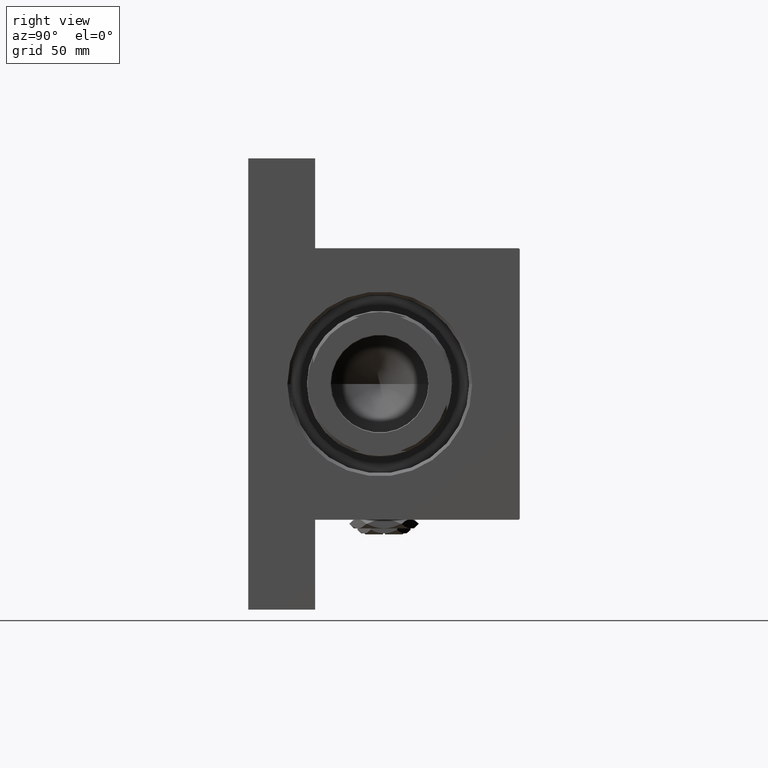
[diagram: clean part render]
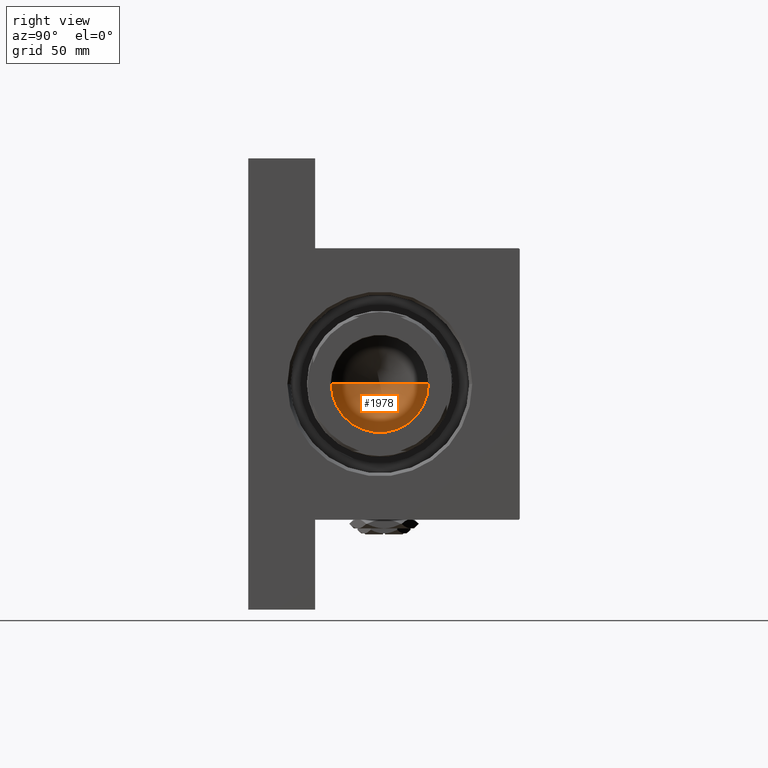
[diagram: same view with one face highlighted and labeled with its STEP entity id]
A machine part, right view. The second image highlights one B-rep face of the part: STEP entity #1978.
In plain terms, the highlighted conical surface has half-angle 59 deg.
Its self-contained STEP definition (entity closure, byte-faithful):
#262 = EDGE_CURVE ( 'NONE', #48456, #17720, #9594, .T. ) ;
#1978 = ADVANCED_FACE ( 'NONE', ( #49236 ), #11256, .F. ) ;
#1980 = EDGE_CURVE ( 'NONE', #17720, #21136, #22583, .T. ) ;
#2407 = EDGE_LOOP ( 'NONE', ( #45744, #18371, #37778 ) ) ;
#2998 = LINE ( 'NONE', #33175, #19749 ) ;
#5726 = VECTOR ( 'NONE', #32928, 1000.000000000000000 ) ;
#7180 = DIRECTION ( 'NONE',  ( -0.000000000000000000, -0.000000000000000000, 1.000000000000000000 ) ) ;
#9594 = LINE ( 'NONE', #10085, #5726 ) ;
#10085 = CARTESIAN_POINT ( 'NONE',  ( 23.24999999999998579, 0.000000000000000000, 109.9999999999999858 ) ) ;
#11256 = CONICAL_SURFACE ( 'NONE', #41207, 23.24999999999998579, 1.029744258676653423 ) ;
#17720 = VERTEX_POINT ( 'NONE', #49196 ) ;
#18371 = ORIENTED_EDGE ( 'NONE', *, *, #262, .T. ) ;
#19749 = VECTOR ( 'NONE', #25317, 1000.000000000000000 ) ;
#20219 = CARTESIAN_POINT ( 'NONE',  ( -1.584115414415908206E-14, 0.000000000000000000, 96.02999060760919292 ) ) ;
#21136 = VERTEX_POINT ( 'NONE', #21624 ) ;
#21624 = CARTESIAN_POINT ( 'NONE',  ( -23.24999999999998579, 2.847303808017594561E-15, 109.9999999999999858 ) ) ;
#22583 = CIRCLE ( 'NONE', #24205, 23.24999999999998579 ) ;
#24205 = AXIS2_PLACEMENT_3D ( 'NONE', #45699, #7180, #33548 ) ;
#25317 = DIRECTION ( 'NONE',  ( -0.8571673007021117785, 1.049727191138617956E-16, 0.5150380749100550437 ) ) ;
#26183 = DIRECTION ( 'NONE',  ( -0.000000000000000000, -0.000000000000000000, 1.000000000000000000 ) ) ;
#32928 = DIRECTION ( 'NONE',  ( 0.8571673007021117785, 0.000000000000000000, 0.5150380749100550437 ) ) ;
#33175 = CARTESIAN_POINT ( 'NONE',  ( -23.24999999999998579, 2.847303808017594561E-15, 109.9999999999999858 ) ) ;
#33548 = DIRECTION ( 'NONE',  ( 1.000000000000000000, 0.000000000000000000, 0.000000000000000000 ) ) ;
#37778 = ORIENTED_EDGE ( 'NONE', *, *, #1980, .T. ) ;
#41207 = AXIS2_PLACEMENT_3D ( 'NONE', #44946, #26183, #41641 ) ;
#41641 = DIRECTION ( 'NONE',  ( 1.000000000000000000, 0.000000000000000000, 0.000000000000000000 ) ) ;
#42538 = EDGE_CURVE ( 'NONE', #48456, #21136, #2998, .T. ) ;
#44946 = CARTESIAN_POINT ( 'NONE',  ( 0.000000000000000000, 0.000000000000000000, 109.9999999999999858 ) ) ;
#45699 = CARTESIAN_POINT ( 'NONE',  ( 0.000000000000000000, 0.000000000000000000, 109.9999999999999858 ) ) ;
#45744 = ORIENTED_EDGE ( 'NONE', *, *, #42538, .F. ) ;
#48456 = VERTEX_POINT ( 'NONE', #20219 ) ;
#49196 = CARTESIAN_POINT ( 'NONE',  ( 23.24999999999998579, 0.000000000000000000, 109.9999999999999858 ) ) ;
#49236 = FACE_OUTER_BOUND ( 'NONE', #2407, .T. ) ;